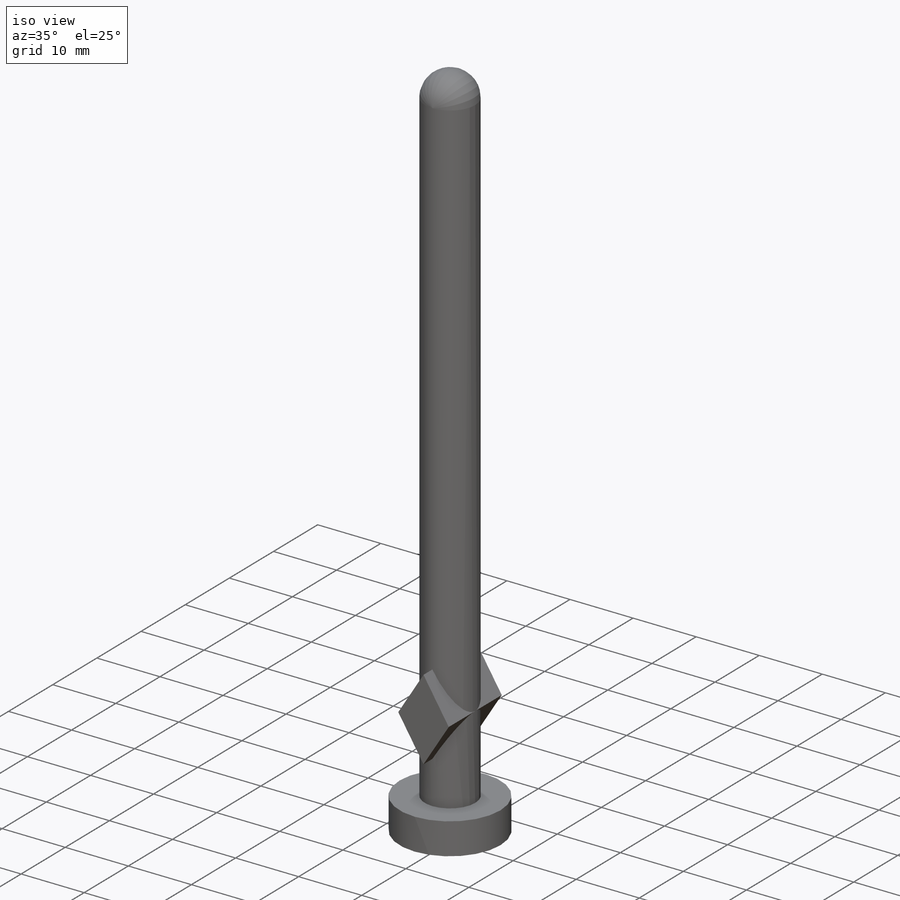
[diagram: iso view]
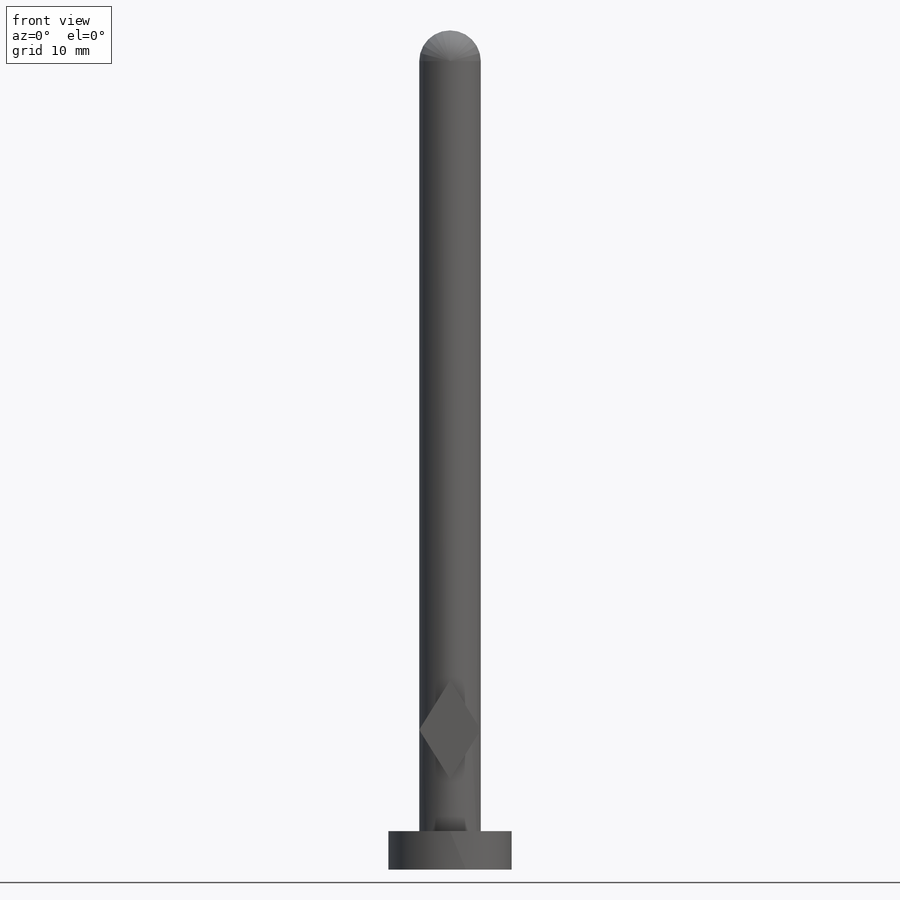
[diagram: front view]
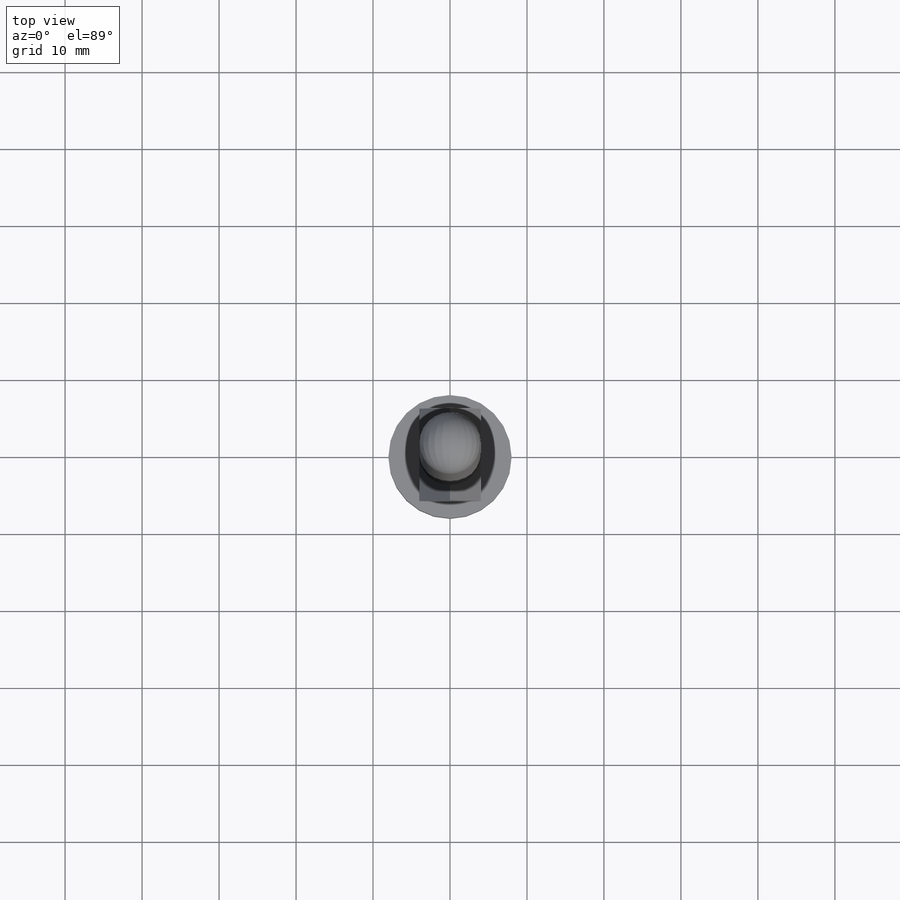
[diagram: top view]
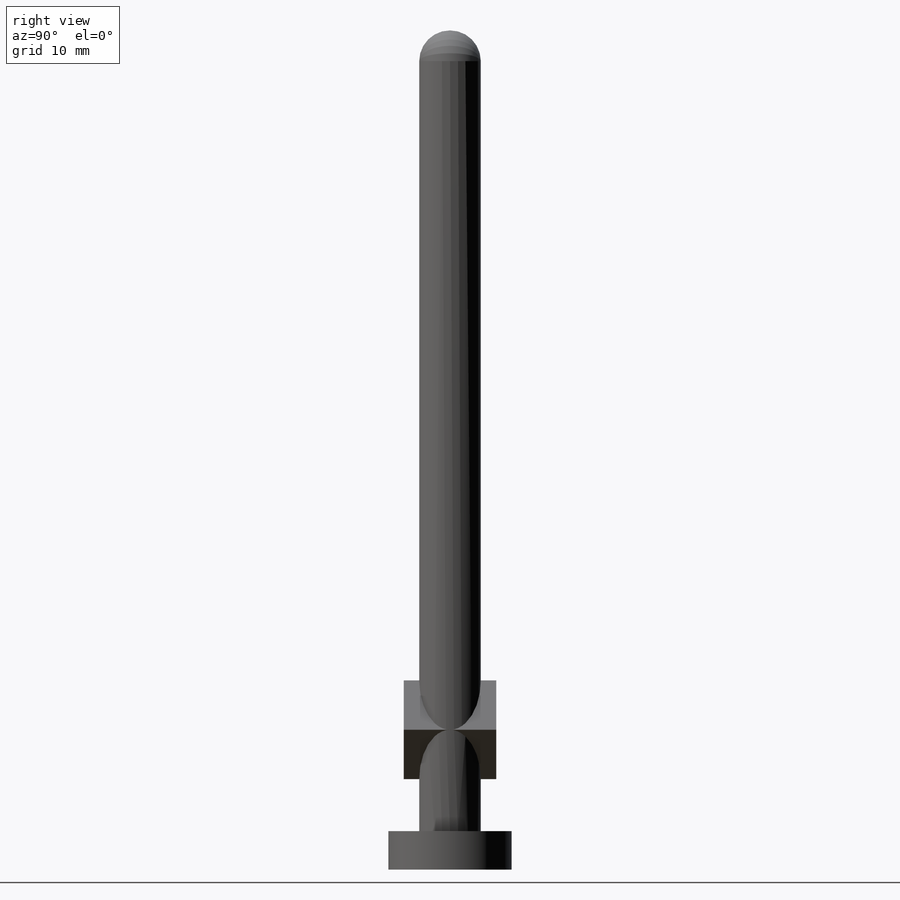
[diagram: right view]
SOLIDWORKS PART (.sldprt)
format: sldprt  version: not decoded by parser v0  size: 139,264 bytes
history: native  units: mm
features: sketch x3, extrude x3, material x1, dome x1 (+13 scaffold rows collapsed)
feature tree (21):
  scaffold x13  (default folders/planes/origin — collapsed)
  material  "Material <not specified>"
  sketch  "Sketch1"  dims[D1=~9.388082mm]
  extrude  "Boss-Extrude1"  Depth=100mm
  dome  "Dome1"
  sketch  "Sketch2"  dims[D1=~7.458549mm]
  extrude  "Boss-Extrude2"  Depth=5mm
  sketch  "Sketch3"  dims[D1=~12.812806mm]
  extrude  "Boss-Extrude3"  Depth=6mm
decode coverage: 6 of 7 modeling features carry decoded parameters
note: ~ marks probable driven/reference dimensions
note: suppression state not decoded; provenance and decode notes live in map.json
